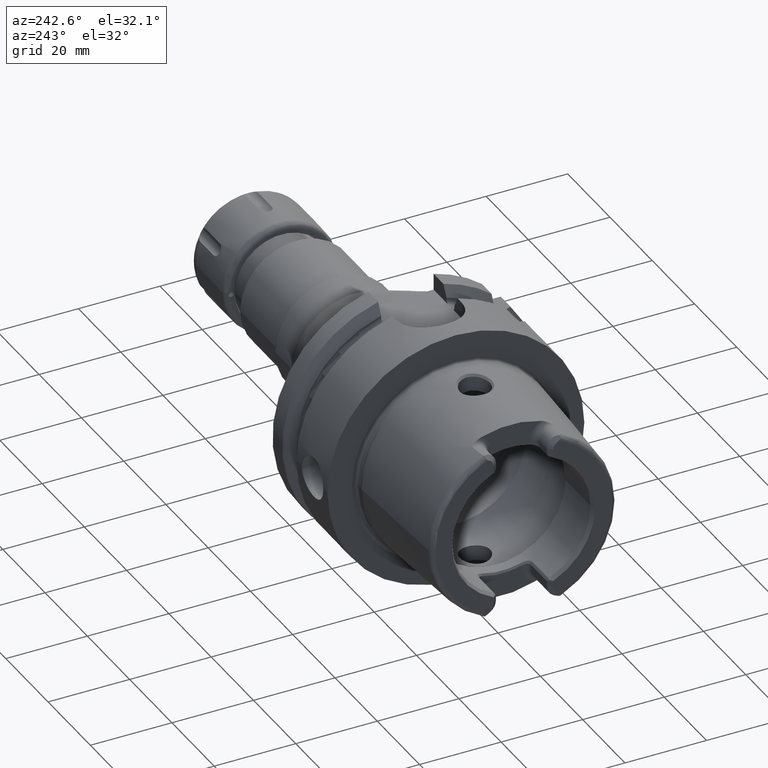
[diagram: clean part render]
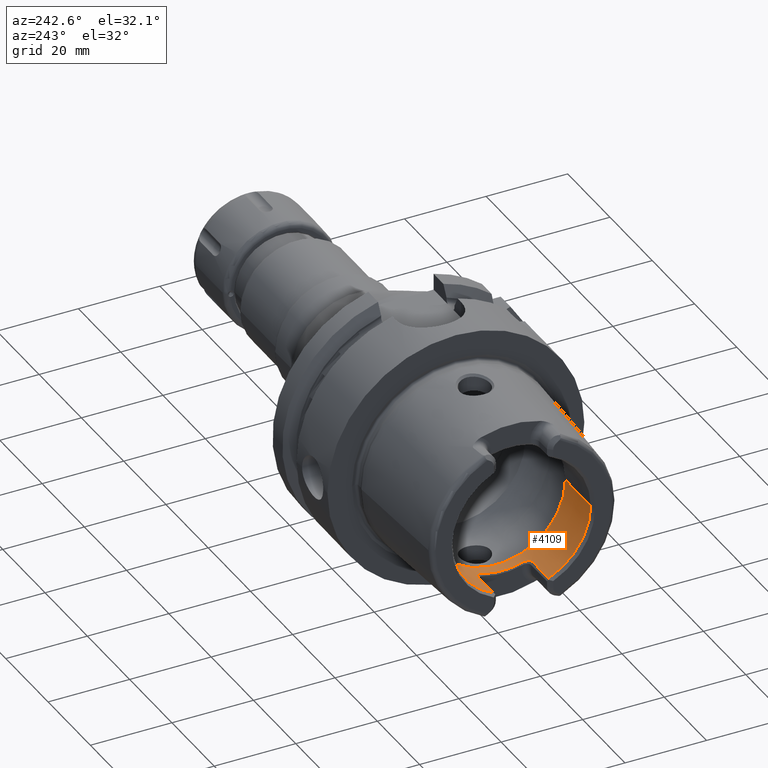
[diagram: same view with one face highlighted and labeled with its STEP entity id]
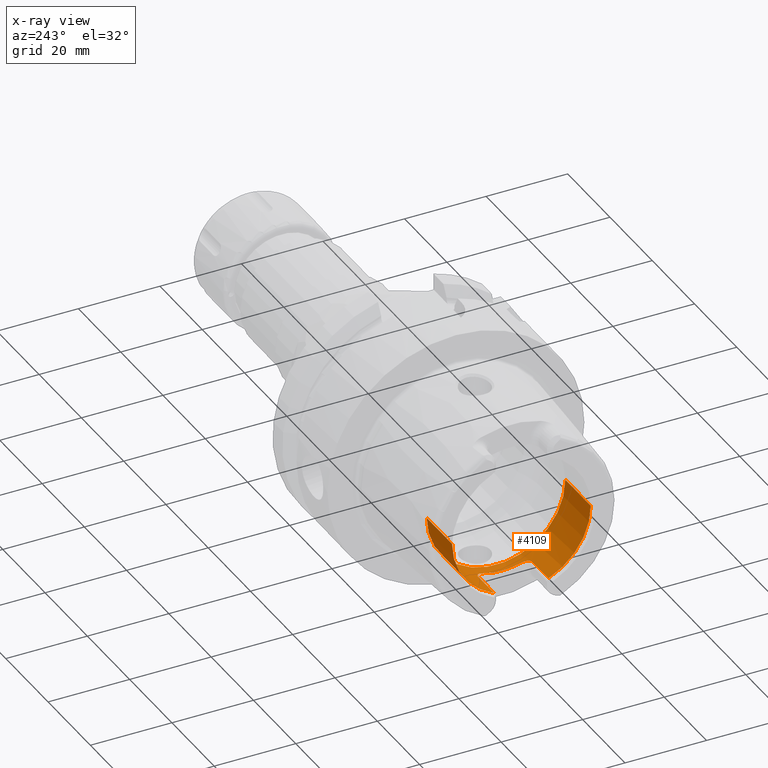
[diagram: x-ray of the same camera — body ghosted, the highlighted face saturated]
A machine part, auxiliary view. The second image highlights one B-rep face of the part: STEP entity #4109.
The next image is the same camera in x-ray: the body ghosted, the highlighted face saturated — about 0% of this face is hidden behind the body in this view.
In plain terms, the highlighted cylindrical surface (partial cylindrical patch) has radius 17 mm, axis along (1, 0, 0).
Its self-contained STEP definition (entity closure, byte-faithful):
#367=CARTESIAN_POINT('',(-3.1E1,0.E0,0.E0));
#368=DIRECTION('',(-1.E0,0.E0,0.E0));
#369=DIRECTION('',(0.E0,1.E0,0.E0));
#370=AXIS2_PLACEMENT_3D('',#367,#368,#369);
#389=CARTESIAN_POINT('',(-3.1E1,0.E0,0.E0));
#390=DIRECTION('',(-1.E0,0.E0,0.E0));
#391=DIRECTION('',(0.E0,-3.910839598454E-1,-9.203550056102E-1));
#392=AXIS2_PLACEMENT_3D('',#389,#390,#391);
#617=DIRECTION('',(1.E0,0.E0,0.E0));
#618=VECTOR('',#617,7.5E0);
#619=CARTESIAN_POINT('',(-3.1E1,-6.648427317371E0,-1.564603509537E1));
#620=LINE('',#619,#618);
#621=CARTESIAN_POINT('',(-2.171132486541E1,-4.77E0,-1.631708000838E1));
#622=CARTESIAN_POINT('',(-2.170911463045E1,-4.851899929324E0,
-1.629313806150E1));
#623=CARTESIAN_POINT('',(-2.171539985496E1,-5.014300274441E0,
-1.624433189365E1));
#624=CARTESIAN_POINT('',(-2.175723226820E1,-5.255574737127E0,
-1.616786516493E1));
#625=CARTESIAN_POINT('',(-2.183019759937E1,-5.488813832187E0,
-1.609012650164E1));
#626=CARTESIAN_POINT('',(-2.193222755914E1,-5.709311810621E0,
-1.601314455534E1));
#627=CARTESIAN_POINT('',(-2.206208908479E1,-5.913640570765E0,
-1.593873381343E1));
#628=CARTESIAN_POINT('',(-2.221579663552E1,-6.097621457296E0,
-1.586916363348E1));
#629=CARTESIAN_POINT('',(-2.239004084082E1,-6.257927374534E0,
-1.580654307494E1));
#630=CARTESIAN_POINT('',(-2.258287946713E1,-6.394281114327E0,
-1.575179653388E1));
#631=CARTESIAN_POINT('',(-2.279414325254E1,-6.504885265694E0,
-1.570637036291E1));
#632=CARTESIAN_POINT('',(-2.302072491693E1,-6.586740689310E0,
-1.567215753589E1));
#633=CARTESIAN_POINT('',(-2.325841410654E1,-6.637201205541E0,
-1.565081274977E1));
#634=CARTESIAN_POINT('',(-2.341884128981E1,-6.648427317371E0,
-1.564603509537E1));
#635=CARTESIAN_POINT('',(-2.35E1,-6.648427317371E0,-1.564603509537E1));
#637=CARTESIAN_POINT('',(-2.171132486541E1,4.77E0,-1.631708000838E1));
#638=CARTESIAN_POINT('',(-2.171132486541E1,4.151241293882E0,-1.649796280277E1));
#639=CARTESIAN_POINT('',(-2.171132889067E1,2.893125957956E0,-1.678926713017E1));
#640=CARTESIAN_POINT('',(-2.171132738120E1,9.685489423330E-1,
-1.700915920873E1));
#641=CARTESIAN_POINT('',(-2.171132738120E1,-9.685489423330E-1,
-1.700915920873E1));
#642=CARTESIAN_POINT('',(-2.171132889067E1,-2.893125957956E0,
-1.678926713017E1));
#643=CARTESIAN_POINT('',(-2.171132486541E1,-4.151241293883E0,
-1.649796280277E1));
#644=CARTESIAN_POINT('',(-2.171132486541E1,-4.77E0,-1.631708000838E1));
#646=CARTESIAN_POINT('',(-2.35E1,6.648427317371E0,-1.564603509537E1));
#647=CARTESIAN_POINT('',(-2.341886739757E1,6.648427317371E0,-1.564603509537E1));
#648=CARTESIAN_POINT('',(-2.325846026145E1,6.637216591931E0,-1.565080624648E1));
#649=CARTESIAN_POINT('',(-2.302047669465E1,6.586680175792E0,-1.567218311946E1));
#650=CARTESIAN_POINT('',(-2.279396033382E1,6.504789416100E0,-1.570640995358E1));
#651=CARTESIAN_POINT('',(-2.258322850975E1,6.394447887182E0,-1.575172726773E1));
#652=CARTESIAN_POINT('',(-2.239118887217E1,6.258799446743E0,-1.580619508840E1));
#653=CARTESIAN_POINT('',(-2.221738949273E1,6.099242016697E0,-1.586853752436E1));
#654=CARTESIAN_POINT('',(-2.206384631874E1,5.916012648985E0,-1.593785105703E1));
#655=CARTESIAN_POINT('',(-2.193366664869E1,5.711955003317E0,-1.601220141386E1));
#656=CARTESIAN_POINT('',(-2.183107108488E1,5.491206341111E0,-1.608931480424E1));
#657=CARTESIAN_POINT('',(-2.175746962839E1,5.256749499660E0,-1.616748882623E1));
#658=CARTESIAN_POINT('',(-2.171543732099E1,5.014873021211E0,-1.624415783103E1));
#659=CARTESIAN_POINT('',(-2.170911008721E1,4.852068278437E0,-1.629308884771E1));
#660=CARTESIAN_POINT('',(-2.171132486541E1,4.77E0,-1.631708000838E1));
#662=DIRECTION('',(1.E0,0.E0,0.E0));
#663=VECTOR('',#662,7.5E0);
#664=CARTESIAN_POINT('',(-3.1E1,6.648427317371E0,-1.564603509537E1));
#665=LINE('',#664,#663);
#666=DIRECTION('',(-1.E0,0.E0,0.E0));
#667=VECTOR('',#666,1.200397459622E1);
#668=CARTESIAN_POINT('',(-1.899602540378E1,1.7E1,0.E0));
#669=LINE('',#668,#667);
#670=CARTESIAN_POINT('',(-1.899602540378E1,0.E0,0.E0));
#671=DIRECTION('',(-1.E0,0.E0,0.E0));
#672=DIRECTION('',(0.E0,1.E0,0.E0));
#673=AXIS2_PLACEMENT_3D('',#670,#671,#672);
#675=DIRECTION('',(-1.E0,0.E0,0.E0));
#676=VECTOR('',#675,1.200397459622E1);
#677=CARTESIAN_POINT('',(-1.899602540378E1,-1.7E1,0.E0));
#678=LINE('',#677,#676);
#2945=CARTESIAN_POINT('',(-1.899602540378E1,1.7E1,0.E0));
#2946=VERTEX_POINT('',#2945);
#2947=CARTESIAN_POINT('',(-3.1E1,1.7E1,0.E0));
#2948=VERTEX_POINT('',#2947);
#2957=CARTESIAN_POINT('',(-1.899602540378E1,-1.7E1,0.E0));
#2958=VERTEX_POINT('',#2957);
#2959=CARTESIAN_POINT('',(-3.1E1,-1.7E1,0.E0));
#2960=VERTEX_POINT('',#2959);
#3072=CARTESIAN_POINT('',(-2.35E1,-6.648427317371E0,-1.564603509537E1));
#3073=VERTEX_POINT('',#3072);
#3074=CARTESIAN_POINT('',(-2.171132486541E1,-4.77E0,-1.631708000838E1));
#3075=VERTEX_POINT('',#3074);
#3076=CARTESIAN_POINT('',(-2.35E1,6.648427317371E0,-1.564603509537E1));
#3077=VERTEX_POINT('',#3076);
#3078=CARTESIAN_POINT('',(-2.171132486541E1,4.77E0,-1.631708000838E1));
#3079=VERTEX_POINT('',#3078);
#3080=CARTESIAN_POINT('',(-3.1E1,-6.648427317371E0,-1.564603509537E1));
#3081=VERTEX_POINT('',#3080);
#3082=CARTESIAN_POINT('',(-3.1E1,6.648427317371E0,-1.564603509537E1));
#3083=VERTEX_POINT('',#3082);
#4086=CARTESIAN_POINT('',(-3.41E1,0.E0,0.E0));
#4087=DIRECTION('',(1.E0,0.E0,0.E0));
#4088=DIRECTION('',(0.E0,-1.E0,0.E0));
#4089=AXIS2_PLACEMENT_3D('',#4086,#4087,#4088);
#4090=CYLINDRICAL_SURFACE('',#4089,1.7E1);
#4092=ORIENTED_EDGE('',*,*,#4091,.T.);
#4094=ORIENTED_EDGE('',*,*,#4093,.F.);
#4096=ORIENTED_EDGE('',*,*,#4095,.F.);
#4098=ORIENTED_EDGE('',*,*,#4097,.F.);
#4100=ORIENTED_EDGE('',*,*,#4099,.F.);
#4101=ORIENTED_EDGE('',*,*,#3696,.F.);
#4102=ORIENTED_EDGE('',*,*,#4028,.F.);
#4104=ORIENTED_EDGE('',*,*,#4103,.T.);
#4105=ORIENTED_EDGE('',*,*,#4024,.T.);
#4106=ORIENTED_EDGE('',*,*,#3712,.F.);
#4107=EDGE_LOOP('',(#4092,#4094,#4096,#4098,#4100,#4101,#4102,#4104,#4105,
#4106));
#4108=FACE_OUTER_BOUND('',#4107,.F.);
#4109=ADVANCED_FACE('',(#4108),#4090,.F.);
#371=CIRCLE('',#370,1.7E1);
#393=CIRCLE('',#392,1.7E1);
#636=B_SPLINE_CURVE_WITH_KNOTS('',3,(#621,#622,#623,#624,#625,#626,#627,#628,
#629,#630,#631,#632,#633,#634,#635),.UNSPECIFIED.,.F.,.F.,(4,1,1,1,1,1,1,1,1,1,
1,1,4),(0.E0,8.333333333333E-2,1.666666666667E-1,2.5E-1,3.333333333333E-1,
4.166666666667E-1,5.E-1,5.833333333333E-1,6.666666666667E-1,7.5E-1,
8.333333333333E-1,9.166666666667E-1,1.E0),.UNSPECIFIED.);
#645=B_SPLINE_CURVE_WITH_KNOTS('',3,(#637,#638,#639,#640,#641,#642,#643,#644),
.UNSPECIFIED.,.F.,.F.,(4,1,1,1,1,4),(0.E0,2.E-1,4.E-1,6.E-1,8.E-1,1.E0),
.UNSPECIFIED.);
#661=B_SPLINE_CURVE_WITH_KNOTS('',3,(#646,#647,#648,#649,#650,#651,#652,#653,
#654,#655,#656,#657,#658,#659,#660),.UNSPECIFIED.,.F.,.F.,(4,1,1,1,1,1,1,1,1,1,
1,1,4),(0.E0,8.333333333333E-2,1.666666666667E-1,2.5E-1,3.333333333333E-1,
4.166666666667E-1,5.E-1,5.833333333333E-1,6.666666666667E-1,7.5E-1,
8.333333333333E-1,9.166666666667E-1,1.E0),.UNSPECIFIED.);
#674=CIRCLE('',#673,1.7E1);
#3696=EDGE_CURVE('',#2948,#3083,#371,.T.);
#3712=EDGE_CURVE('',#3081,#2960,#393,.T.);
#4024=EDGE_CURVE('',#2958,#2960,#678,.T.);
#4028=EDGE_CURVE('',#2946,#2948,#669,.T.);
#4091=EDGE_CURVE('',#3081,#3073,#620,.T.);
#4093=EDGE_CURVE('',#3075,#3073,#636,.T.);
#4095=EDGE_CURVE('',#3079,#3075,#645,.T.);
#4097=EDGE_CURVE('',#3077,#3079,#661,.T.);
#4099=EDGE_CURVE('',#3083,#3077,#665,.T.);
#4103=EDGE_CURVE('',#2946,#2958,#674,.T.);